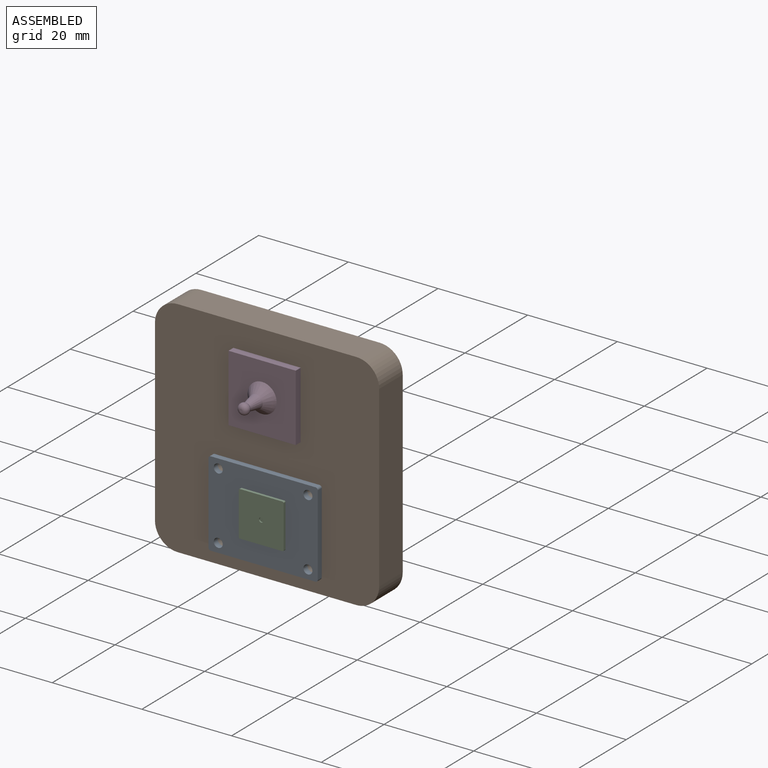
[diagram: assembled view]
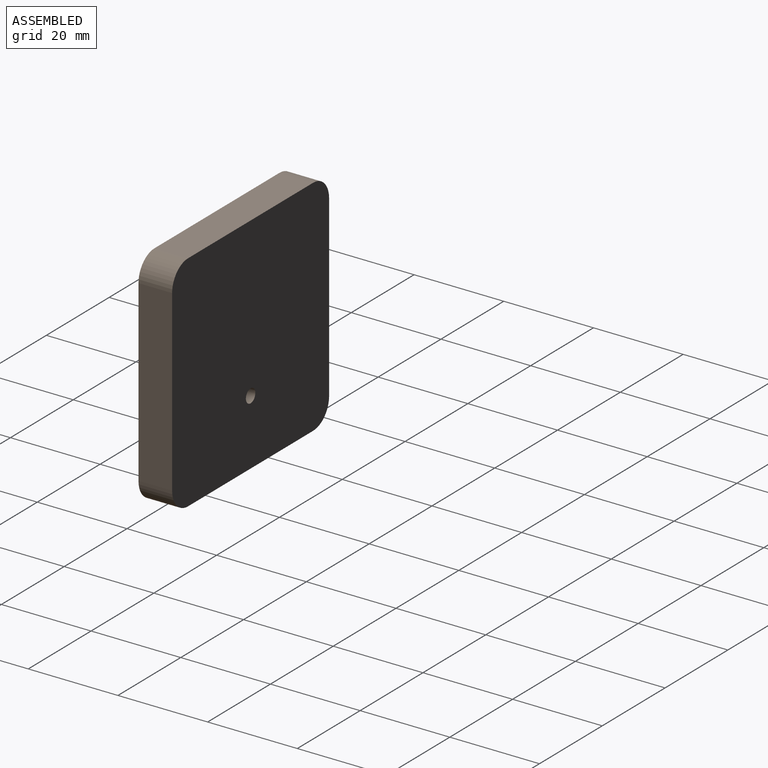
[diagram: assembled view, second angle]
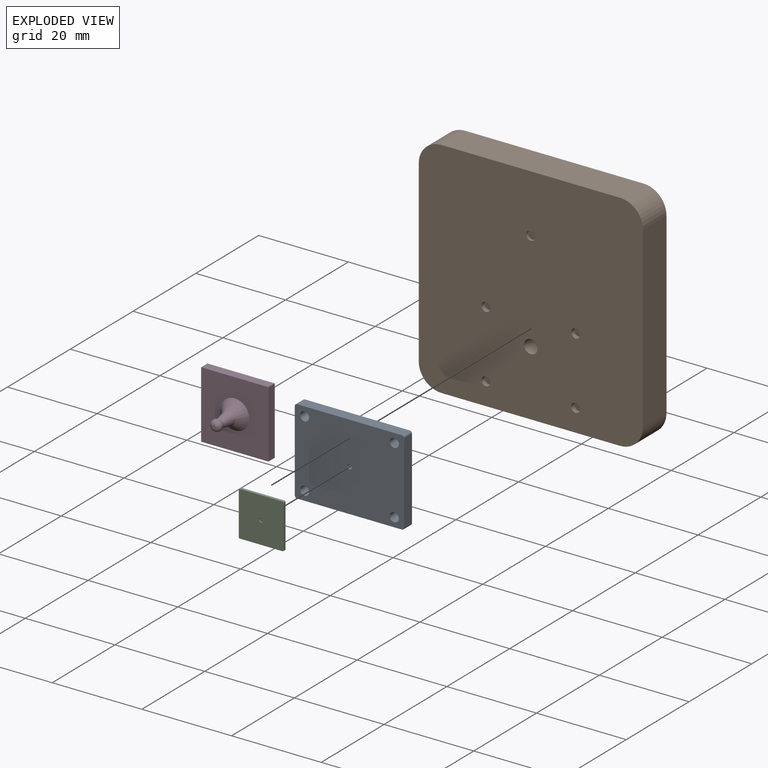
[diagram: exploded view]
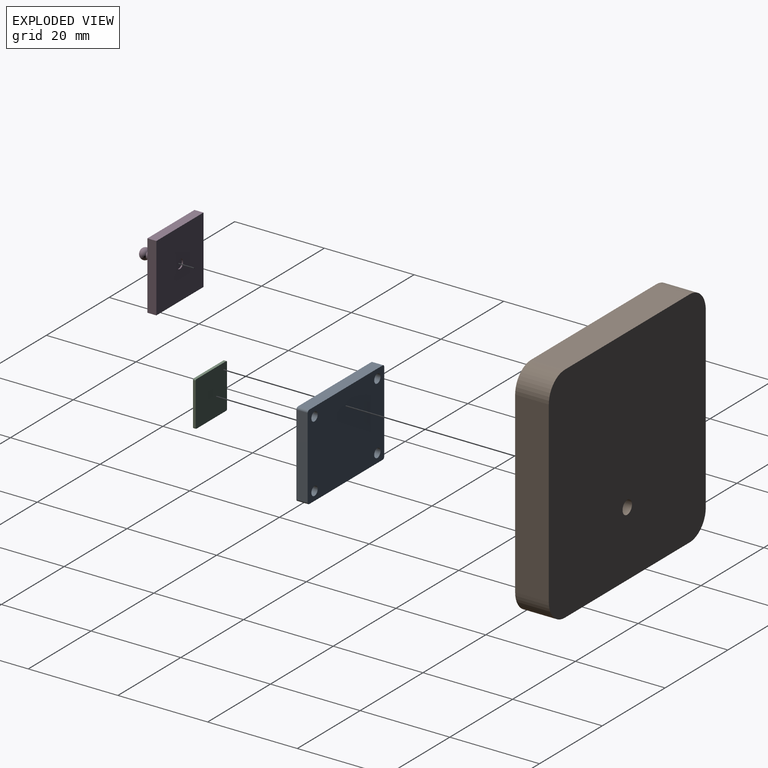
[diagram: exploded view, second angle]
ASSEMBLY  parts=4 mates=3
PART A: 16 faces, bbox 24.4x2.5x19 mm
  f0: plane 23.38x2.51mm, normal (0,0,1), area 58.8mm2, adj f8,f9,f10,f13
  f1: plane 18.02x2.51mm, normal (-1,0,0), area 45.3mm2, adj f8,f9,f10,f11
  f2: plane 23.38x2.51mm, normal (0,0,-1), area 58.8mm2, adj f8,f9,f11,f12
  f3: cylinder r=1mm len=2.51mm, axis (0,-1,0), area 15.8mm2, adj f8,f9
  f4: cylinder r=1mm len=2.51mm, axis (0,-1,0), area 15.8mm2, adj f8,f9
  f5: cylinder r=1mm len=2.51mm, axis (0,-1,0), area 15.8mm2, adj f8,f9
  f6: cylinder r=1mm len=2.51mm, axis (0,-1,0), area 15.8mm2, adj f8,f9
  f7: plane 18.02x2.51mm, normal (1,0,0), area 45.3mm2, adj f8,f9,f12,f13
  f8: plane 24.38x19.02mm, normal (0,1,0), area 451mm2, adj f0,f1,f2,f3,f4,f5,f6,f7
  f9: plane 24.38x19.02mm, normal (0,-1,0), area 450.2mm2, adj f0,f1,f2,f3,f4,f5,f6,f7
  f10: cylinder r=0.5mm len=2.51mm, axis (0,1,0), area 2mm2, adj f0,f1,f8,f9
  f11: cylinder r=0.5mm len=2.51mm, axis (0,-1,0), area 2mm2, adj f1,f2,f8,f9
  f12: cylinder r=0.5mm len=2.51mm, axis (0,1,0), area 2mm2, adj f2,f7,f8,f9
  f13: cylinder r=0.5mm len=2.51mm, axis (0,-1,0), area 2mm2, adj f0,f7,f8,f9
  f14: cylinder r=0.5mm len=1.12mm, axis (0,-1,0), area 3.5mm2, adj f9,f15
  f15: plane 1x1mm, normal (0,-1,0), area 0.8mm2, adj f14
PART B: 21 faces, bbox 50x7.5x50 mm
  f0: plane 39.84x7.5mm, normal (0,0,1), area 298.8mm2, adj f4,f5,f6,f9
  f1: plane 39.84x7.5mm, normal (-1,0,0), area 298.8mm2, adj f4,f5,f6,f7
  f2: plane 39.84x7.5mm, normal (0,0,-1), area 298.8mm2, adj f4,f5,f7,f8
  f3: plane 39.84x7.5mm, normal (1,0,0), area 298.8mm2, adj f4,f5,f8,f9
  f4: plane 50x50mm, normal (0,-1,0), area 2455.1mm2, adj f0,f1,f2,f3,f6,f7,f8,f9
  f5: plane 50x50mm, normal (0,1,0), area 2470.8mm2, adj f0,f1,f2,f3,f6,f7,f8,f9
  f6: cylinder r=5.08mm len=7.5mm, axis (0,-1,0), area 59.8mm2, adj f0,f1,f4,f5
  f7: cylinder r=5.08mm len=7.5mm, axis (0,1,0), area 59.8mm2, adj f1,f2,f4,f5
  f8: cylinder r=5.08mm len=7.5mm, axis (0,-1,0), area 59.8mm2, adj f2,f3,f4,f5
  f9: cylinder r=5.08mm len=7.5mm, axis (0,1,0), area 59.8mm2, adj f0,f3,f4,f5
  f10: cylinder r=1mm len=2mm, axis (0,-1,0), area 6.4mm2, adj f4,f11
  f11: plane 2x2mm, normal (0,-1,0), area 3.1mm2, adj f10
  f12: cylinder r=1mm len=2mm, axis (0,-1,0), area 6.4mm2, adj f4,f13
  f13: plane 2x2mm, normal (0,-1,0), area 3.1mm2, adj f12
  f14: cylinder r=1mm len=2mm, axis (0,-1,0), area 6.4mm2, adj f4,f15
  f15: plane 2x2mm, normal (0,-1,0), area 3.1mm2, adj f14
  f16: cylinder r=1mm len=2mm, axis (0,-1,0), area 6.4mm2, adj f4,f17
  f17: plane 2x2mm, normal (0,-1,0), area 3.1mm2, adj f16
  f18: cylinder r=1mm len=2mm, axis (0,-1,0), area 3.7mm2, adj f4,f19
  f19: plane 2x2mm, normal (0,-1,0), area 3.1mm2, adj f18
  f20: cylinder r=1.5mm len=7.5mm, axis (0,1,0), area 70.7mm2, adj f4,f5
PART C: 12 faces, bbox 10x0.6x10 mm
  f0: plane 9.49x0.6mm, normal (0,0,1), area 5.7mm2, adj f4,f5,f8,f11
  f1: plane 9.49x0.6mm, normal (-1,0,0), area 5.7mm2, adj f4,f5,f8,f9
  f2: plane 9.49x0.6mm, normal (0,0,-1), area 5.7mm2, adj f4,f5,f9,f10
  f3: plane 9.49x0.6mm, normal (1,0,0), area 5.7mm2, adj f4,f5,f10,f11
  f4: plane 10x10mm, normal (0,-1,0), area 99.2mm2, adj f0,f1,f2,f3,f6,f8,f9,f10
  f5: plane 10x10mm, normal (0,1,0), area 99.9mm2, adj f0,f1,f2,f3,f8,f9,f10,f11
  f6: cylinder r=0.5mm len=1mm, axis (0,-1,0), area 0.9mm2, adj f4,f7
  f7: plane 1x1mm, normal (0,-1,0), area 0.8mm2, adj f6
  f8: cylinder r=0.25mm len=0.6mm, axis (0,-1,0), area 0.2mm2, adj f0,f1,f4,f5
  f9: cylinder r=0.25mm len=0.6mm, axis (0,1,0), area 0.2mm2, adj f1,f2,f4,f5
  f10: cylinder r=0.25mm len=0.6mm, axis (0,-1,0), area 0.2mm2, adj f2,f3,f4,f5
  f11: cylinder r=0.25mm len=0.6mm, axis (0,1,0), area 0.2mm2, adj f0,f3,f4,f5
PART D: 11 faces, bbox 15x9x15 mm
  f0: plane 15x2mm, normal (0,0,1), area 30mm2, adj f1,f3,f4,f5
  f1: plane 15x2mm, normal (-1,0,0), area 30mm2, adj f0,f2,f4,f5
  f2: plane 15x2mm, normal (0,0,-1), area 30mm2, adj f1,f3,f4,f5
  f3: plane 15x2mm, normal (1,0,0), area 30mm2, adj f0,f2,f4,f5
  f4: plane 15x15mm, normal (0,1,0), area 221.9mm2, adj f0,f1,f2,f3,f8
  f5: plane 15x15mm, normal (0,-1,0), area 192mm2, adj f0,f1,f2,f3,f7
  f6: cone r=1.91mm half-angle=11.5deg, axis (0,1,0), area 23.3mm2, adj f7,f10
  f7: cone r=1.51mm half-angle=41.5deg, axis (0,1,0), area 39mm2, adj f5,f6
  f8: cylinder r=1mm len=2mm, axis (0,1,0), area 1.8mm2, adj f4,f9
  f9: plane 2x2mm, normal (0,1,0), area 3.1mm2, adj f8
  f10: torus R=0.22mm, axis (0,-1,0), area 14.4mm2, adj f6
PLACE A t=(-12.31,-2.55,-9.35)mm
PLACE B t=(-12.31,4.95,3.15)mm fixed
PLACE C t=(-12.31,-4.1,-9.35)mm
PLACE D t=(-12.31,-3.12,15.17)mm
MATE parallel D.f8 <-> B.f18  axis (0,1,0) through (-12.31,-2.25,15.17)mm
MATE fastened C.f6 <-> A.f14  axis (0,1,0) through (-12.31,-3.8,-9.35)mm
MATE revolute A.f3 <-> B.f10  axis (0,-1,0) through (-22.31,-2.55,-1.85)mm
